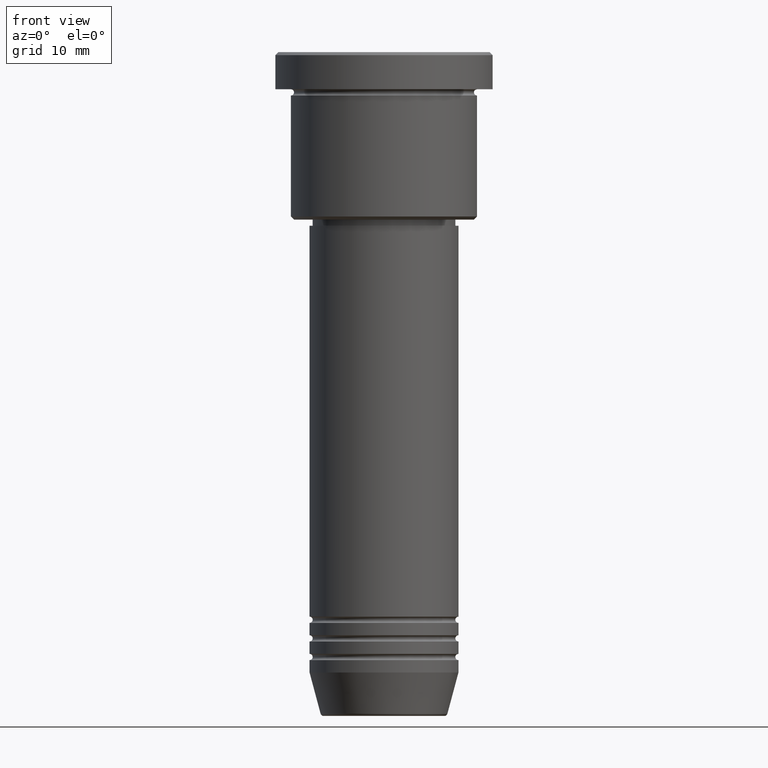
[diagram: clean part render]
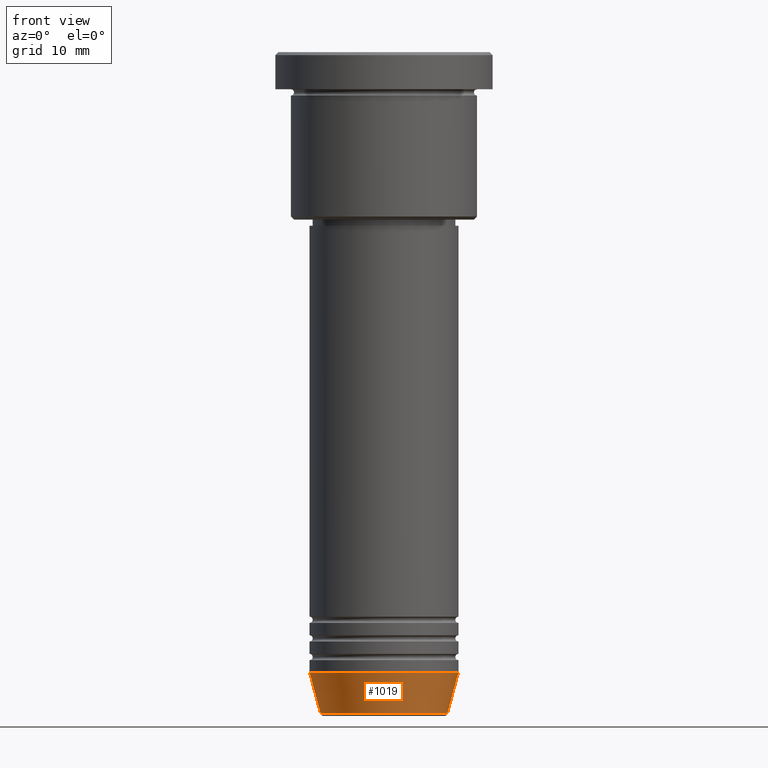
[diagram: same view with one face highlighted and labeled with its STEP entity id]
A machine part, front view. The second image highlights one B-rep face of the part: STEP entity #1019.
In plain terms, the highlighted conical surface has half-angle 15 deg.
Its self-contained STEP definition (entity closure, byte-faithful):
#7 = VERTEX_POINT ( 'NONE', #195 ) ;
#54 = LINE ( 'NONE', #865, #739 ) ;
#72 = DIRECTION ( 'NONE',  ( -0.000000000000000000, -0.000000000000000000, 1.000000000000000000 ) ) ;
#107 = CARTESIAN_POINT ( 'NONE',  ( -12.00000000000000000, 1.469576158976823947E-15, -100.0000000000000000 ) ) ;
#120 = EDGE_CURVE ( 'NONE', #7, #1022, #1119, .T. ) ;
#154 = VERTEX_POINT ( 'NONE', #747 ) ;
#160 = ORIENTED_EDGE ( 'NONE', *, *, #389, .T. ) ;
#195 = CARTESIAN_POINT ( 'NONE',  ( -10.22365507213719305, 1.360806402472382744E-15, -106.6294095225512564 ) ) ;
#196 = ORIENTED_EDGE ( 'NONE', *, *, #983, .F. ) ;
#215 = CONICAL_SURFACE ( 'NONE', #338, 12.00000000000000000, 0.2617993877991500740 ) ;
#220 = CARTESIAN_POINT ( 'NONE',  ( 0.000000000000000000, 0.000000000000000000, -100.0000000000000000 ) ) ;
#266 = ORIENTED_EDGE ( 'NONE', *, *, #120, .T. ) ;
#304 = AXIS2_PLACEMENT_3D ( 'NONE', #220, #748, #1182 ) ;
#338 = AXIS2_PLACEMENT_3D ( 'NONE', #448, #72, #1168 ) ;
#389 = EDGE_CURVE ( 'NONE', #1022, #154, #54, .T. ) ;
#442 = FACE_OUTER_BOUND ( 'NONE', #756, .T. ) ;
#448 = CARTESIAN_POINT ( 'NONE',  ( 0.000000000000000000, 0.000000000000000000, -100.0000000000000000 ) ) ;
#571 = CIRCLE ( 'NONE', #304, 12.00000000000000000 ) ;
#624 = CARTESIAN_POINT ( 'NONE',  ( -12.00000000000000000, 1.469576158976823947E-15, -100.0000000000000000 ) ) ;
#633 = LINE ( 'NONE', #624, #709 ) ;
#659 = VERTEX_POINT ( 'NONE', #107 ) ;
#671 = ORIENTED_EDGE ( 'NONE', *, *, #1121, .F. ) ;
#709 = VECTOR ( 'NONE', #904, 1000.000000000000000 ) ;
#713 = DIRECTION ( 'NONE',  ( 0.2588190451025213501, 0.000000000000000000, 0.9659258262890680902 ) ) ;
#729 = DIRECTION ( 'NONE',  ( -0.000000000000000000, -0.000000000000000000, 1.000000000000000000 ) ) ;
#739 = VECTOR ( 'NONE', #713, 1000.000000000000000 ) ;
#747 = CARTESIAN_POINT ( 'NONE',  ( 12.00000000000000000, 0.000000000000000000, -100.0000000000000000 ) ) ;
#748 = DIRECTION ( 'NONE',  ( -0.000000000000000000, -0.000000000000000000, 1.000000000000000000 ) ) ;
#756 = EDGE_LOOP ( 'NONE', ( #196, #266, #160, #671 ) ) ;
#801 = CARTESIAN_POINT ( 'NONE',  ( 10.22365507213719305, 0.000000000000000000, -106.6294095225512564 ) ) ;
#865 = CARTESIAN_POINT ( 'NONE',  ( 12.00000000000000000, 0.000000000000000000, -100.0000000000000000 ) ) ;
#904 = DIRECTION ( 'NONE',  ( -0.2588190451025213501, 3.169619151431772337E-17, 0.9659258262890680902 ) ) ;
#983 = EDGE_CURVE ( 'NONE', #7, #659, #633, .T. ) ;
#984 = CARTESIAN_POINT ( 'NONE',  ( 0.000000000000000000, 0.000000000000000000, -106.6294095225512564 ) ) ;
#1019 = ADVANCED_FACE ( 'NONE', ( #442 ), #215, .T. ) ;
#1022 = VERTEX_POINT ( 'NONE', #801 ) ;
#1071 = AXIS2_PLACEMENT_3D ( 'NONE', #984, #729, #1159 ) ;
#1119 = CIRCLE ( 'NONE', #1071, 10.22365507213719305 ) ;
#1121 = EDGE_CURVE ( 'NONE', #659, #154, #571, .T. ) ;
#1159 = DIRECTION ( 'NONE',  ( 1.000000000000000000, 0.000000000000000000, 0.000000000000000000 ) ) ;
#1168 = DIRECTION ( 'NONE',  ( 1.000000000000000000, 0.000000000000000000, 0.000000000000000000 ) ) ;
#1182 = DIRECTION ( 'NONE',  ( 1.000000000000000000, 0.000000000000000000, 0.000000000000000000 ) ) ;